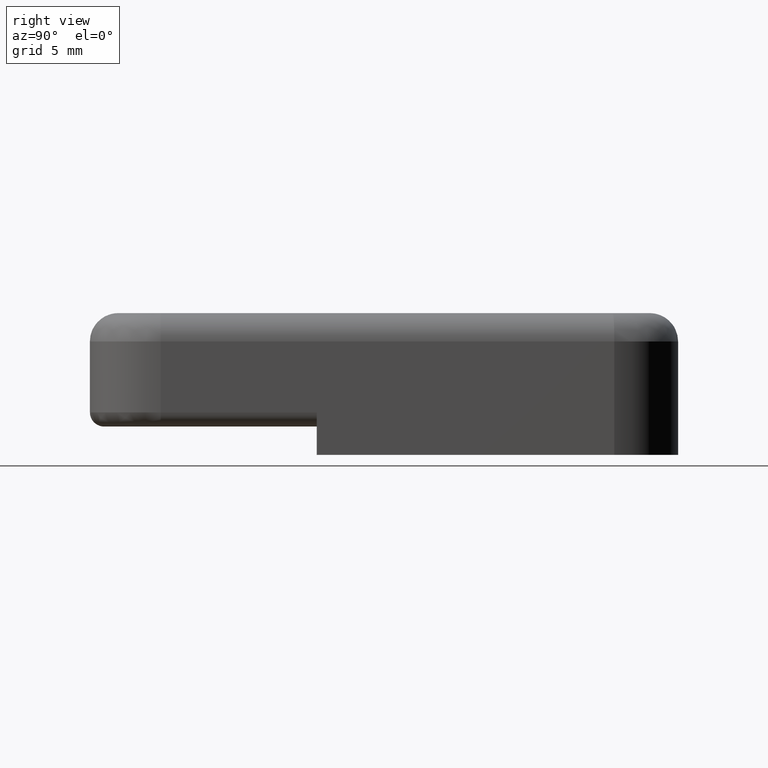
[diagram: clean part render]
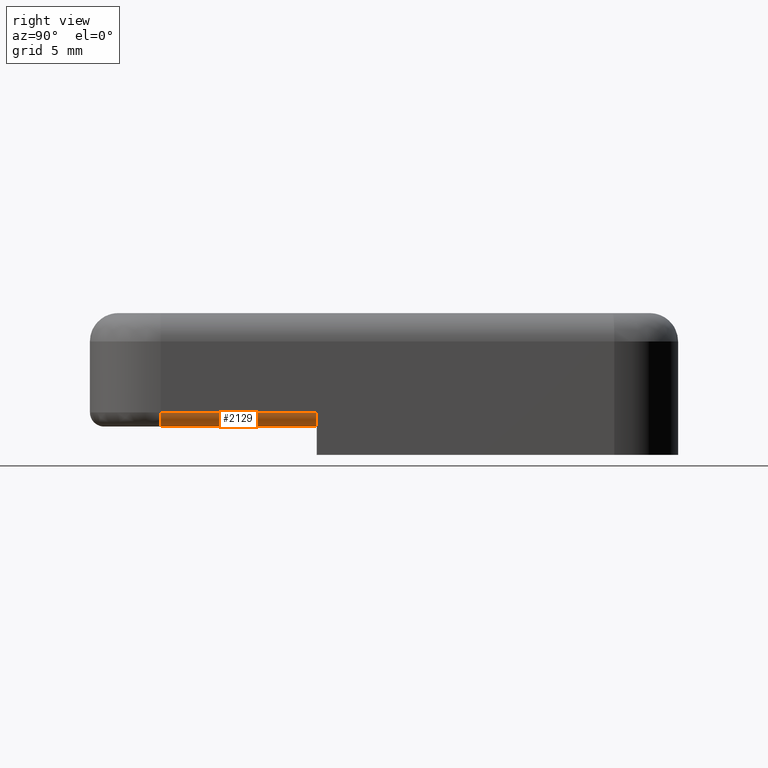
[diagram: same view with one face highlighted and labeled with its STEP entity id]
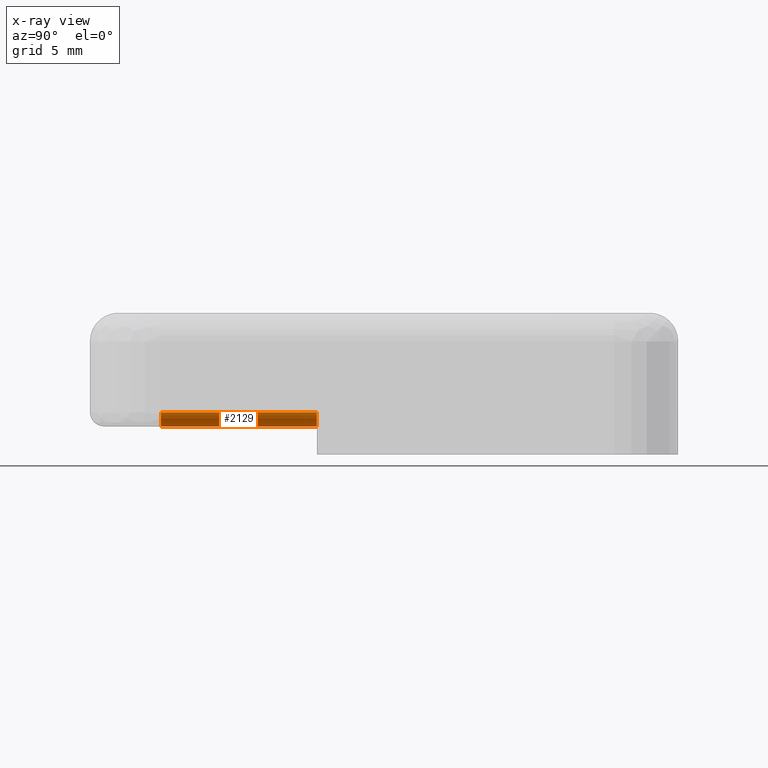
[diagram: x-ray of the same camera — body ghosted, the highlighted face saturated]
A machine part, right view. The second image highlights one B-rep face of the part: STEP entity #2129.
The next image is the same camera in x-ray: the body ghosted, the highlighted face saturated — about 0% of this face is hidden behind the body in this view.
In plain terms, the highlighted cylindrical surface (edge-blend (fillet) strip) has radius 1 mm, axis along (0, 1, 0).
Its self-contained STEP definition (entity closure, byte-faithful):
#2021=CARTESIAN_POINT('',(14.500000000004547,0.0,3.000000000000910));
#2022=VERTEX_POINT('',#2021);
#2029=CARTESIAN_POINT('',(13.500000000004547,0.0,2.000000000000910));
#2030=VERTEX_POINT('',#2029);
#2031=CARTESIAN_POINT('',(13.500000000004547,0.0,3.000000000000910));
#2032=DIRECTION('',(0.0,1.0,0.0));
#2033=DIRECTION('',(1.0,0.0,0.0));
#2034=AXIS2_PLACEMENT_3D('',#2031,#2032,#2033);
#2035=CIRCLE('',#2034,1.0);
#2036=EDGE_CURVE('',#2022,#2030,#2035,.T.);
#2098=CARTESIAN_POINT('',(13.500000000004547,-11.003970467914655,3.000000000000910));
#2099=DIRECTION('',(0.0,1.0,0.0));
#2100=DIRECTION('',(1.0,0.0,0.0));
#2101=AXIS2_PLACEMENT_3D('',#2098,#2099,#2100);
#2102=CYLINDRICAL_SURFACE('',#2101,1.0);
#2103=CARTESIAN_POINT('',(14.500000000004547,-11.003970467914655,3.000000000000910));
#2104=VERTEX_POINT('',#2103);
#2105=CARTESIAN_POINT('',(13.500000000004547,-11.003970467914655,2.000000000000910));
#2106=VERTEX_POINT('',#2105);
#2107=CARTESIAN_POINT('',(13.500000000004547,-11.003970467914655,3.000000000000910));
#2108=DIRECTION('',(0.0,1.0,0.0));
#2109=DIRECTION('',(1.0,0.0,0.0));
#2110=AXIS2_PLACEMENT_3D('',#2107,#2108,#2109);
#2111=CIRCLE('',#2110,1.0);
#2112=EDGE_CURVE('',#2104,#2106,#2111,.T.);
#2113=ORIENTED_EDGE('',*,*,#2112,.T.);
#2114=CARTESIAN_POINT('',(13.500000000004547,-11.003970467914655,2.000000000000910));
#2115=DIRECTION('',(0.0,1.0,0.0));
#2116=VECTOR('',#2115,11.003970467914655);
#2117=LINE('',#2114,#2116);
#2118=EDGE_CURVE('',#2106,#2030,#2117,.T.);
#2119=ORIENTED_EDGE('',*,*,#2118,.T.);
#2120=ORIENTED_EDGE('',*,*,#2036,.F.);
#2121=CARTESIAN_POINT('',(14.500000000004547,-11.003970467914655,3.000000000000910));
#2122=DIRECTION('',(0.0,1.0,0.0));
#2123=VECTOR('',#2122,11.003970467914655);
#2124=LINE('',#2121,#2123);
#2125=EDGE_CURVE('',#2104,#2022,#2124,.T.);
#2126=ORIENTED_EDGE('',*,*,#2125,.F.);
#2127=EDGE_LOOP('',(#2113,#2119,#2120,#2126));
#2128=FACE_OUTER_BOUND('',#2127,.T.);
#2129=ADVANCED_FACE('',(#2128),#2102,.T.);